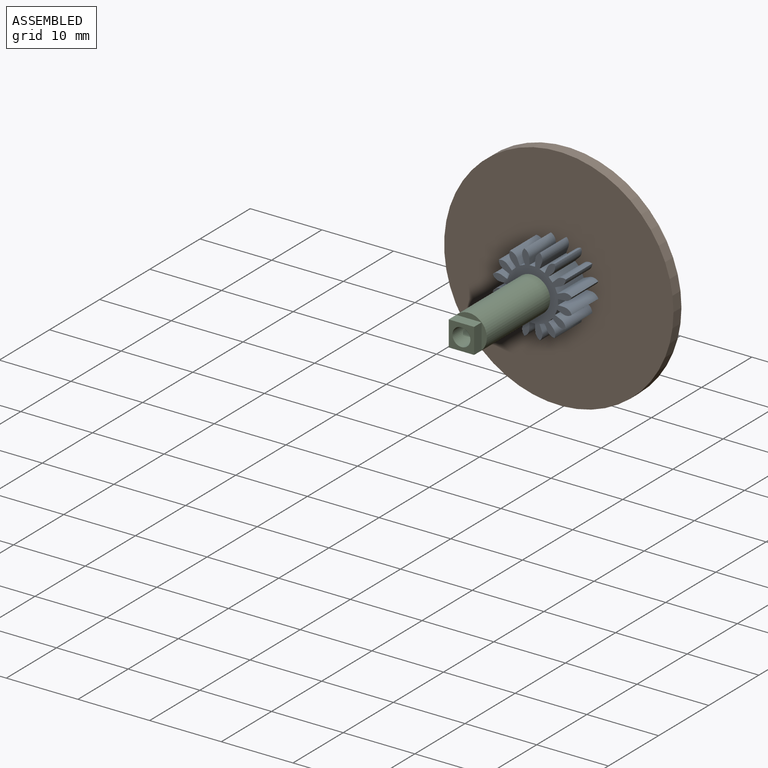
[diagram: assembled view]
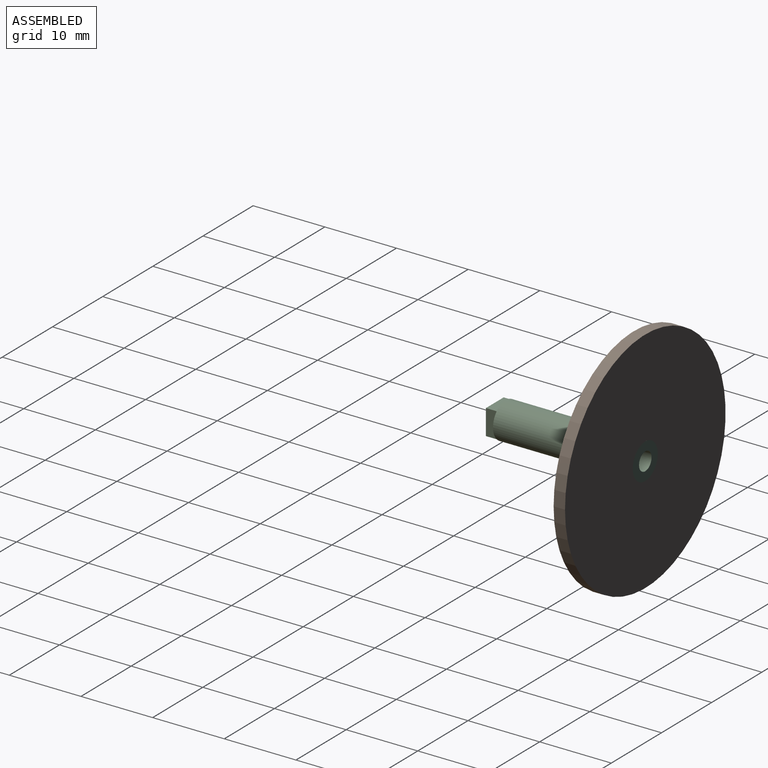
[diagram: assembled view, second angle]
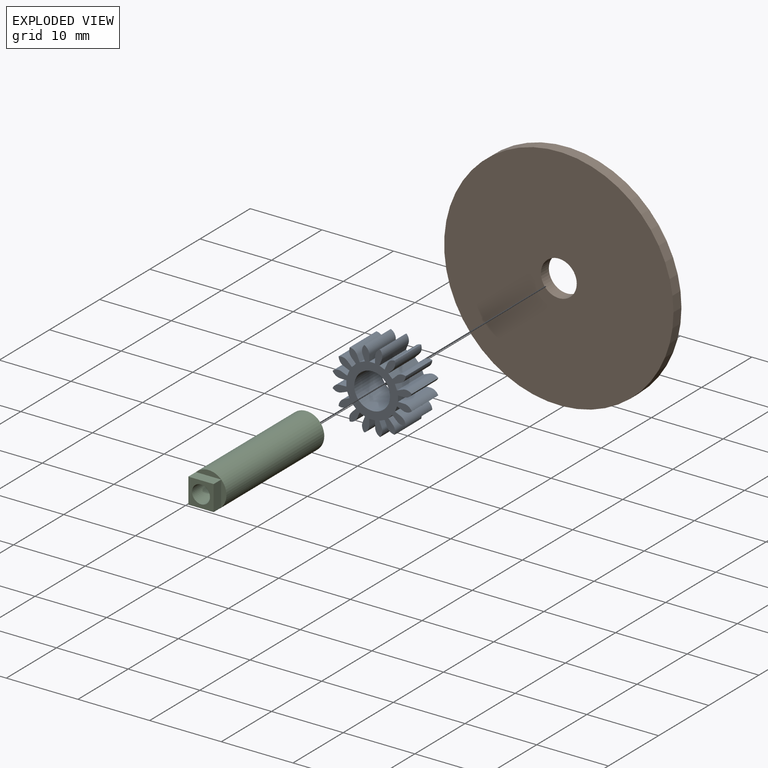
[diagram: exploded view]
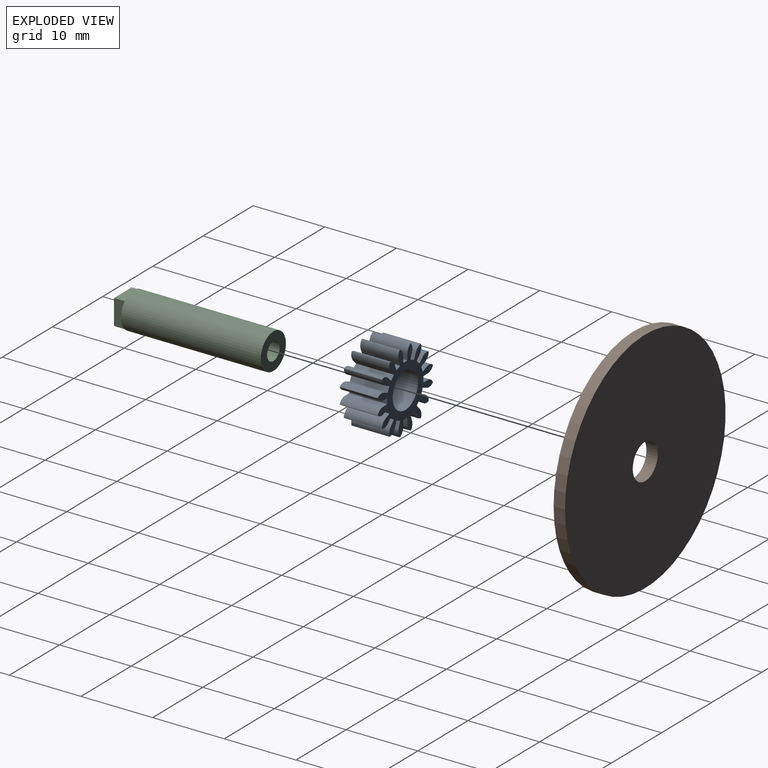
[diagram: exploded view, second angle]
ASSEMBLY  parts=3 mates=2
PART A: 83 faces, bbox 11x5.3x11 mm
  f0: cylinder r=2.5mm len=5.3mm, axis (0,-1,0), area 83.3mm2, adj f3,f82
  f1: cylinder r=1.16mm len=5.3mm, axis (0,-1,0), area 7mm2, adj f2,f3,f80,f82
  f2: plane 5.3x0.82mm, normal (0.93,0,-0.37), area 4.7mm2, adj f1,f3,f4,f82
  f3: plane 11.04x11.04mm, normal (0,1,0), area 45.8mm2, adj f0,f1,f2,f4,f5,f6,f7,f8
  f4: plane 5.3x0.73mm, normal (0.38,0,0.92), area 4.2mm2, adj f2,f3,f5,f82
  f5: plane 5.3x0.81mm, normal (-0.92,0,0.4), area 4.7mm2, adj f3,f4,f6,f82
  f6: cylinder r=1.16mm len=5.3mm, axis (0,-1,0), area 7mm2, adj f3,f5,f7,f82
  f7: cylinder r=1.16mm len=5.3mm, axis (0,-1,0), area 7mm2, adj f3,f6,f8,f82
  f8: plane 5.3x0.63mm, normal (0.72,0,-0.69), area 4.7mm2, adj f3,f7,f9,f82
  f9: plane 5.3x0.56mm, normal (0.71,0,0.71), area 4.2mm2, adj f3,f8,f10,f82
  f10: plane 5.3x0.63mm, normal (-0.69,0,0.72), area 4.7mm2, adj f3,f9,f11,f82
  f11: cylinder r=1.16mm len=5.3mm, axis (0,-1,0), area 7mm2, adj f3,f10,f12,f82
  f12: cylinder r=1.16mm len=5.3mm, axis (0,-1,0), area 7mm2, adj f3,f11,f13,f82
  f13: plane 5.3x0.81mm, normal (0.4,0,-0.92), area 4.7mm2, adj f3,f12,f14,f82
  f14: plane 5.3x0.73mm, normal (0.92,0,0.38), area 4.2mm2, adj f3,f13,f15,f82
  f15: plane 5.3x0.82mm, normal (-0.37,0,0.93), area 4.7mm2, adj f3,f14,f16,f82
  f16: cylinder r=1.16mm len=5.3mm, axis (0,-1,0), area 7mm2, adj f3,f15,f17,f82
  f17: cylinder r=1.16mm len=5.3mm, axis (0,-1,0), area 7mm2, adj f3,f16,f18,f82
  f18: plane 5.3x0.88mm, normal (0.02,0,-1), area 4.7mm2, adj f3,f17,f19,f82
  f19: plane 5.3x0.79mm, normal (1,0,0), area 4.2mm2, adj f3,f18,f20,f82
  f20: plane 5.3x0.88mm, normal (0.02,0,1), area 4.7mm2, adj f3,f19,f21,f82
  f21: cylinder r=1.16mm len=5.3mm, axis (0,-1,0), area 7mm2, adj f3,f20,f22,f82
  f22: cylinder r=1.16mm len=5.3mm, axis (0,-1,0), area 7mm2, adj f3,f21,f23,f82
  f23: plane 5.3x0.82mm, normal (-0.37,0,-0.93), area 4.7mm2, adj f3,f22,f24,f82
  f24: plane 5.3x0.73mm, normal (0.92,0,-0.38), area 4.2mm2, adj f3,f23,f25,f82
  f25: plane 5.3x0.81mm, normal (0.4,0,0.92), area 4.7mm2, adj f3,f24,f26,f82
  f26: cylinder r=1.16mm len=5.3mm, axis (0,-1,0), area 7mm2, adj f3,f25,f27,f82
  f27: cylinder r=1.16mm len=5.3mm, axis (0,-1,0), area 7mm2, adj f3,f26,f28,f82
  f28: plane 5.3x0.63mm, normal (-0.69,0,-0.72), area 4.7mm2, adj f3,f27,f29,f82
  f29: plane 5.3x0.56mm, normal (0.71,0,-0.71), area 4.2mm2, adj f3,f28,f30,f82
  f30: plane 5.3x0.63mm, normal (0.72,0,0.69), area 4.7mm2, adj f3,f29,f31,f82
  f31: cylinder r=1.16mm len=5.3mm, axis (0,-1,0), area 7mm2, adj f3,f30,f32,f82
  f32: cylinder r=1.16mm len=5.3mm, axis (0,-1,0), area 7mm2, adj f3,f31,f33,f82
  f33: plane 5.3x0.81mm, normal (-0.92,0,-0.4), area 4.7mm2, adj f3,f32,f34,f82
  f34: plane 5.3x0.73mm, normal (0.38,0,-0.92), area 4.2mm2, adj f3,f33,f35,f82
  f35: plane 5.3x0.82mm, normal (0.93,0,0.37), area 4.7mm2, adj f3,f34,f36,f82
  f36: cylinder r=1.16mm len=5.3mm, axis (0,-1,0), area 7mm2, adj f3,f35,f37,f82
  f37: cylinder r=1.16mm len=5.3mm, axis (0,-1,0), area 7mm2, adj f3,f36,f38,f82
  f38: plane 5.3x0.88mm, normal (-1,0,-0.02), area 4.7mm2, adj f3,f37,f39,f82
  f39: plane 5.3x0.79mm, normal (0,0,-1), area 4.2mm2, adj f3,f38,f40,f82
  f40: plane 5.3x0.88mm, normal (1,0,-0.02), area 4.7mm2, adj f3,f39,f41,f82
  f41: cylinder r=1.16mm len=5.3mm, axis (0,-1,0), area 7mm2, adj f3,f40,f42,f82
  f42: cylinder r=1.16mm len=5.3mm, axis (0,-1,0), area 7mm2, adj f3,f41,f43,f82
  f43: plane 5.3x0.82mm, normal (-0.93,0,0.37), area 4.7mm2, adj f3,f42,f44,f82
  f44: plane 5.3x0.73mm, normal (-0.38,0,-0.92), area 4.2mm2, adj f3,f43,f45,f82
  f45: plane 5.3x0.81mm, normal (0.92,0,-0.4), area 4.7mm2, adj f3,f44,f46,f82
  f46: cylinder r=1.16mm len=5.3mm, axis (0,-1,0), area 7mm2, adj f3,f45,f47,f82
  f47: cylinder r=1.16mm len=5.3mm, axis (0,-1,0), area 7mm2, adj f3,f46,f48,f82
  f48: plane 5.3x0.63mm, normal (-0.72,0,0.69), area 4.7mm2, adj f3,f47,f49,f82
  f49: plane 5.3x0.56mm, normal (-0.71,0,-0.71), area 4.2mm2, adj f3,f48,f50,f82
  f50: plane 5.3x0.63mm, normal (0.69,0,-0.72), area 4.7mm2, adj f3,f49,f51,f82
  f51: cylinder r=1.16mm len=5.3mm, axis (0,-1,0), area 7mm2, adj f3,f50,f52,f82
  f52: cylinder r=1.16mm len=5.3mm, axis (0,-1,0), area 7mm2, adj f3,f51,f53,f82
  f53: plane 5.3x0.81mm, normal (-0.4,0,0.92), area 4.7mm2, adj f3,f52,f54,f82
  f54: plane 5.3x0.73mm, normal (-0.92,0,-0.38), area 4.2mm2, adj f3,f53,f55,f82
  f55: plane 5.3x0.82mm, normal (0.37,0,-0.93), area 4.7mm2, adj f3,f54,f56,f82
  f56: cylinder r=1.16mm len=5.3mm, axis (0,-1,0), area 7mm2, adj f3,f55,f57,f82
  f57: cylinder r=1.16mm len=5.3mm, axis (0,-1,0), area 7mm2, adj f3,f56,f58,f82
  f58: plane 5.3x0.88mm, normal (-0.02,0,1), area 4.7mm2, adj f3,f57,f59,f82
  f59: plane 5.3x0.79mm, normal (-1,0,0), area 4.2mm2, adj f3,f58,f60,f82
  f60: plane 5.3x0.88mm, normal (-0.02,0,-1), area 4.7mm2, adj f3,f59,f61,f82
  f61: cylinder r=1.16mm len=5.3mm, axis (0,-1,0), area 7mm2, adj f3,f60,f62,f82
  f62: cylinder r=1.16mm len=5.3mm, axis (0,-1,0), area 7mm2, adj f3,f61,f63,f82
  f63: plane 5.3x0.82mm, normal (0.37,0,0.93), area 4.7mm2, adj f3,f62,f64,f82
  f64: plane 5.3x0.73mm, normal (-0.92,0,0.38), area 4.2mm2, adj f3,f63,f65,f82
  f65: plane 5.3x0.81mm, normal (-0.4,0,-0.92), area 4.7mm2, adj f3,f64,f66,f82
  f66: cylinder r=1.16mm len=5.3mm, axis (0,-1,0), area 7mm2, adj f3,f65,f67,f82
  f67: cylinder r=1.16mm len=5.3mm, axis (0,-1,0), area 7mm2, adj f3,f66,f68,f82
  f68: plane 5.3x0.63mm, normal (0.69,0,0.72), area 4.7mm2, adj f3,f67,f69,f82
  f69: plane 5.3x0.56mm, normal (-0.71,0,0.71), area 4.2mm2, adj f3,f68,f70,f82
  f70: plane 5.3x0.63mm, normal (-0.72,0,-0.69), area 4.7mm2, adj f3,f69,f71,f82
  f71: cylinder r=1.16mm len=5.3mm, axis (0,-1,0), area 7mm2, adj f3,f70,f72,f82
  f72: cylinder r=1.16mm len=5.3mm, axis (0,-1,0), area 7mm2, adj f3,f71,f73,f82
  f73: plane 5.3x0.81mm, normal (0.92,0,0.4), area 4.7mm2, adj f3,f72,f74,f82
  f74: plane 5.3x0.73mm, normal (-0.38,0,0.92), area 4.2mm2, adj f3,f73,f75,f82
  f75: plane 5.3x0.82mm, normal (-0.93,0,-0.37), area 4.7mm2, adj f3,f74,f76,f82
  f76: cylinder r=1.16mm len=5.3mm, axis (0,-1,0), area 7mm2, adj f3,f75,f77,f82
  f77: cylinder r=1.16mm len=5.3mm, axis (0,-1,0), area 7mm2, adj f3,f76,f78,f82
  f78: plane 5.3x0.88mm, normal (1,0,0.02), area 4.7mm2, adj f3,f77,f79,f82
  f79: plane 5.3x0.79mm, normal (0,0,1), area 4.2mm2, adj f3,f78,f81,f82
  f80: cylinder r=1.16mm len=5.3mm, axis (0,-1,0), area 7mm2, adj f1,f3,f81,f82
  f81: plane 5.3x0.88mm, normal (-1,0,0.02), area 4.7mm2, adj f3,f79,f80,f82
  f82: plane 11.04x11.04mm, normal (0,-1,0), area 45.8mm2, adj f0,f1,f2,f4,f5,f6,f7,f8
PART B: 4 faces, bbox 32x1.6x32 mm
  f0: cylinder r=16mm len=32mm, axis (0,-1,0), area 159.6mm2, adj f2,f3
  f1: cylinder r=2.5mm len=5mm, axis (0,-1,0), area 24.9mm2, adj f2,f3
  f2: plane 32x32mm, normal (0,-1,0), area 784.6mm2, adj f0,f1
  f3: plane 32x32mm, normal (0,1,0), area 784.6mm2, adj f0,f1
PART C: 12 faces, bbox 5x21x5 mm
  f0: plane 3.54x0.73mm, normal (0,-1,0), area 1.8mm2, adj f7,f8
  f1: plane 3.54x0.73mm, normal (0,-1,0), area 1.8mm2, adj f4,f8
  f2: plane 3.54x0.73mm, normal (0,-1,0), area 1.8mm2, adj f5,f8
  f3: plane 3.54x0.73mm, normal (0,-1,0), area 1.8mm2, adj f6,f8
  f4: plane 3.54x1.5mm, normal (0,0,1), area 5.3mm2, adj f1,f5,f7,f10
  f5: plane 3.54x1.5mm, normal (1,0,0), area 5.3mm2, adj f2,f4,f6,f10
  f6: plane 3.54x1.5mm, normal (0,0,-1), area 5.3mm2, adj f3,f5,f7,f10
  f7: plane 3.54x1.5mm, normal (-1,0,0), area 5.3mm2, adj f0,f4,f6,f10
  f8: cylinder r=2.5mm len=19.5mm, axis (0,-1,0), area 306.3mm2, adj f0,f1,f2,f3,f11
  f9: cylinder r=1.25mm len=21mm, axis (0,-1,0), area 164.9mm2, adj f10,f11
  f10: plane 3.54x3.54mm, normal (0,-1,0), area 7.6mm2, adj f4,f5,f6,f7,f9
  f11: plane 5x5mm, normal (0,1,0), area 14.7mm2, adj f8,f9
PLACE A t=(0.32,-4.63,2.96)mm
PLACE B t=(0.32,-3.04,2.96)mm
PLACE C t=(0.32,-3.04,2.96)mm
MATE fastened B.f0 <-> A.f0  axis (0,-1,0) through (0.32,-4.63,2.96)mm
MATE fastened B.f0 <-> C.f8  axis (0,1,0) through (0.32,-3.04,2.96)mm
